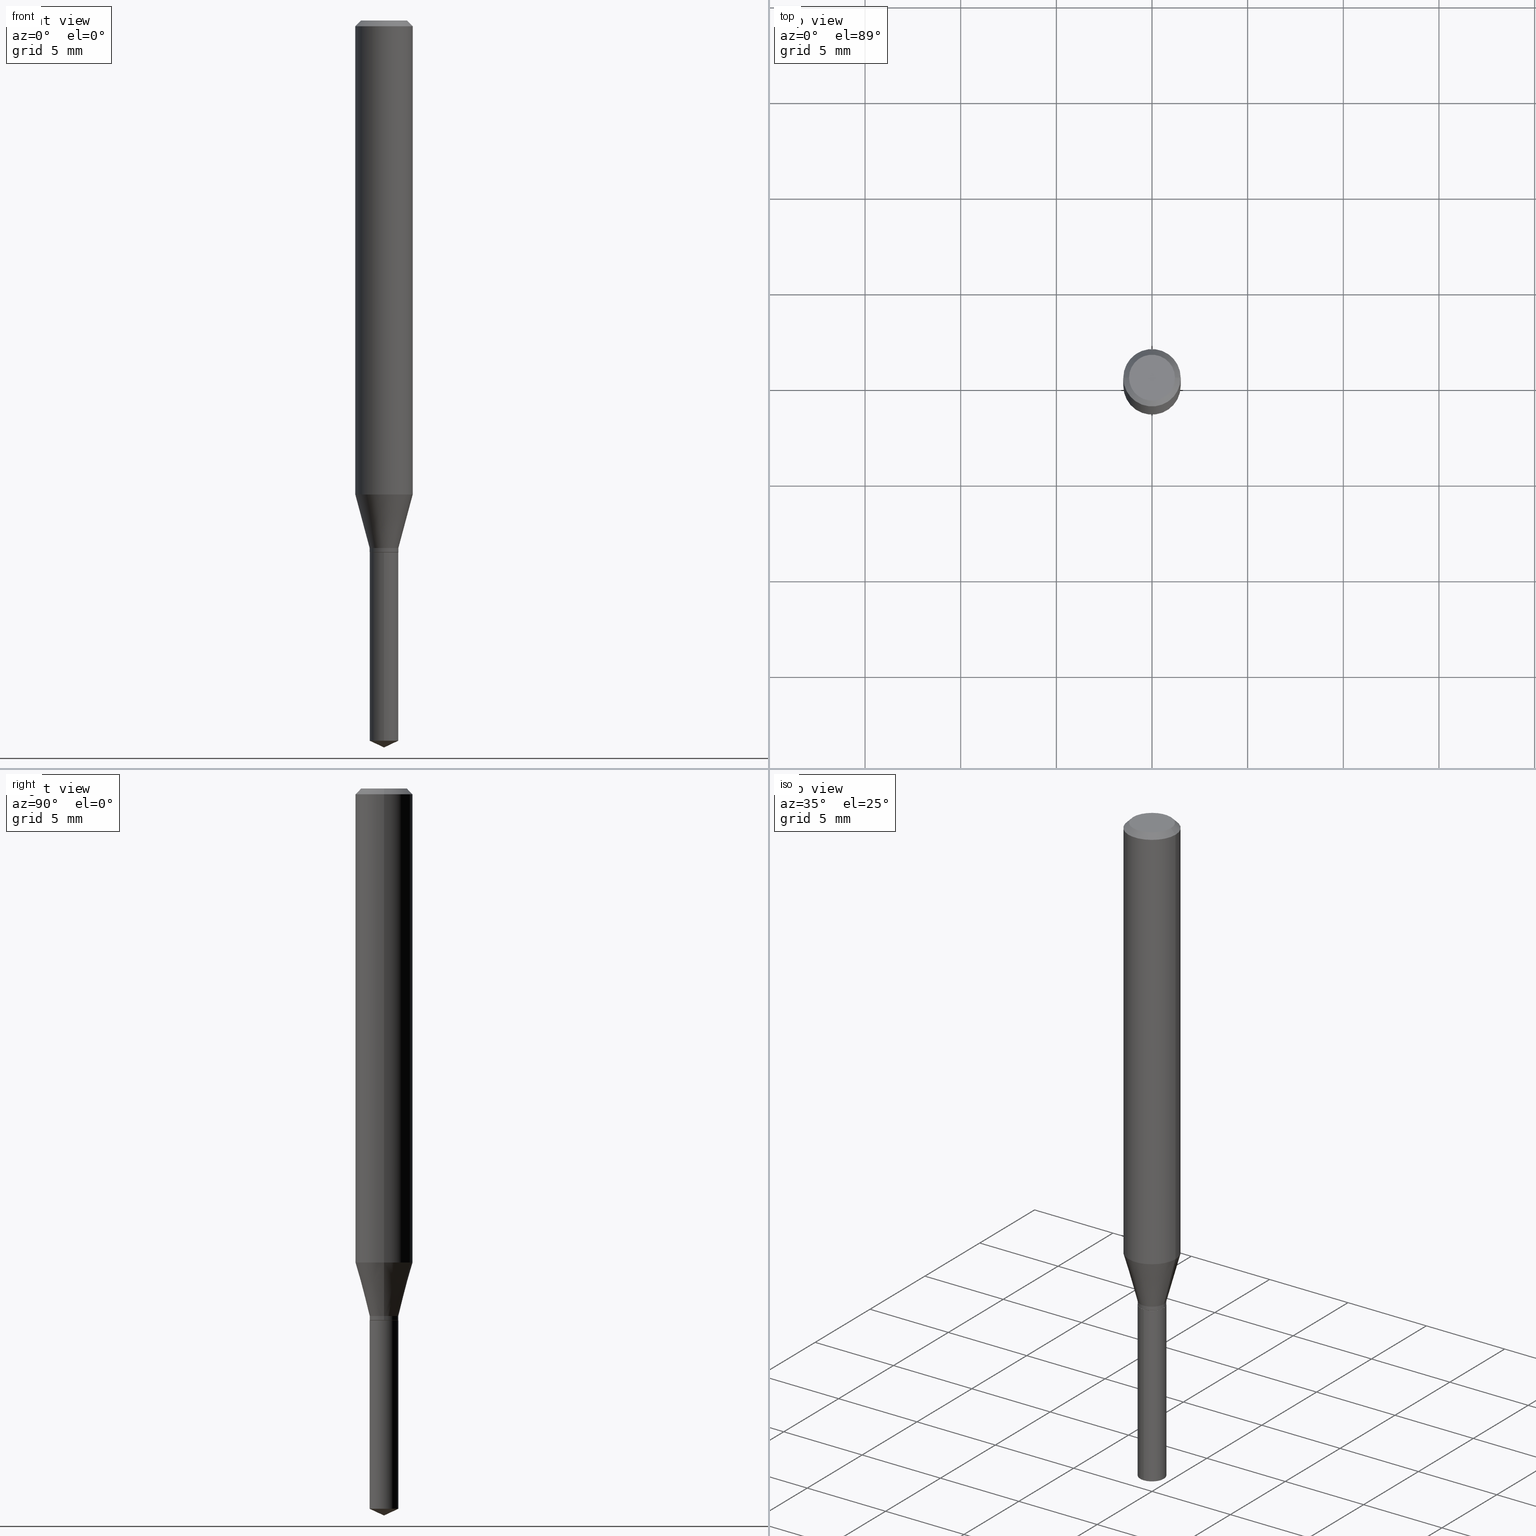
[diagram: canonical four-view strip — front | top / right | iso, engineering-drawing reading convention]
A machine part, canonical four-view strip (front | top / right | iso — engineering-drawing reading convention). The complete STEP part file that produces these views, byte-faithful:
ISO-10303-21;
HEADER;
FILE_DESCRIPTION (( 'STEP AP203' ),
    '1' );
FILE_NAME ('08166.STEP',
    '2024-04-24T13:42:08',
    ( '' ),
    ( '' ),
    'SwSTEP 2.0',
    'SolidWorks 2023',
    '' );
FILE_SCHEMA (( 'CONFIG_CONTROL_DESIGN' ));
ENDSEC;

DATA;
#1 = CARTESIAN_POINT ( 'NONE',  ( 2.676565608369631794E-29, -3.821426325363822773E-15, -1.094499999999999806 ) ) ;
#2 = LINE ( 'NONE', #263, #433 ) ;
#3 = ORIENTED_EDGE ( 'NONE', *, *, #186, .F. ) ;
#4 = DIMENSIONAL_EXPONENTS ( 1.000000000000000000, 0.000000000000000000, 0.000000000000000000, 0.000000000000000000, 0.000000000000000000, 0.000000000000000000, 0.000000000000000000 ) ;
#5 = AXIS2_PLACEMENT_3D ( 'NONE', #114, #448, #272 ) ;
#6 =( LENGTH_UNIT ( ) NAMED_UNIT ( * ) SI_UNIT ( $, .METRE. ) );
#7 = CC_DESIGN_PERSON_AND_ORGANIZATION_ASSIGNMENT ( #387, #201, ( #406 ) ) ;
#8 = PLANE ( 'NONE',  #388 ) ;
#9 = CARTESIAN_POINT ( 'NONE',  ( 0.02954999999999998600, -3.996698688573748043E-15, -1.085600000000000120 ) ) ;
#10 = CARTESIAN_POINT ( 'NONE',  ( 0.04724000000000000421, -3.852183633974369345E-16, -3.380025165621689721E-19 ) ) ;
#11 = DIRECTION ( 'NONE',  ( -2.445468806185136597E-29, 3.491481338843145583E-15, 1.000000000000000000 ) ) ;
#12 = DIRECTION ( 'NONE',  ( 0.2588190451025211281, 1.565188264969622954E-15, 0.9659258262890679791 ) ) ;
#13 = CC_DESIGN_DATE_AND_TIME_ASSIGNMENT ( #474, #250, ( #338 ) ) ;
#14 = CARTESIAN_POINT ( 'NONE',  ( 2.676565608369631794E-29, -3.821426325363822773E-15, -1.094499999999999806 ) ) ;
#15 = VECTOR ( 'NONE', #116, 39.37007874015748143 ) ;
#16 = COORDINATED_UNIVERSAL_TIME_OFFSET ( 5, 0, .BEHIND. ) ;
#17 = ORIENTED_EDGE ( 'NONE', *, *, #449, .T. ) ;
#18 = CARTESIAN_POINT ( 'NONE',  ( -9.261705871415894043E-28, 1.322399773465276608E-13, 37.87397874015748300 ) ) ;
#19 = PERSON_AND_ORGANIZATION ( #278, #25 ) ;
#20 = CARTESIAN_POINT ( 'NONE',  ( 2.676565608369631794E-29, -3.821426325363822773E-15, -1.094499999999999806 ) ) ;
#21 = ORIENTED_EDGE ( 'NONE', *, *, #401, .F. ) ;
#22 = LINE ( 'NONE', #113, #148 ) ;
#23 = AXIS2_PLACEMENT_3D ( 'NONE', #85, #241, #390 ) ;
#24 = ADVANCED_FACE ( 'NONE', ( #66 ), #42, .T. ) ;
#25 = ORGANIZATION ( 'UNSPECIFIED', 'UNSPECIFIED', '' ) ;
#26 = ORIENTED_EDGE ( 'NONE', *, *, #481, .T. ) ;
#27 = AXIS2_PLACEMENT_3D ( 'NONE', #419, #155, #381 ) ;
#28 = CC_DESIGN_PERSON_AND_ORGANIZATION_ASSIGNMENT ( #239, #321, ( #406 ) ) ;
#29 = CIRCLE ( 'NONE', #352, 0.02954999999999999988 ) ;
#30 = EDGE_LOOP ( 'NONE', ( #89, #408, #64 ) ) ;
#31 = ORIENTED_EDGE ( 'NONE', *, *, #249, .F. ) ;
#32 = EDGE_CURVE ( 'NONE', #480, #331, #423, .T. ) ;
#33 = ORIENTED_EDGE ( 'NONE', *, *, #394, .T. ) ;
#34 = CARTESIAN_POINT ( 'NONE',  ( 2.675342873966538993E-29, -3.819680584694400481E-15, -1.093999999999999861 ) ) ;
#35 = CARTESIAN_POINT ( 'NONE',  ( 3.624943183911285064E-29, -5.175531440543460128E-15, -1.482320608701520159 ) ) ;
#36 = DIRECTION ( 'NONE',  ( 0.7071067811865173747, -2.468850131081940727E-15, 0.7071067811865776598 ) ) ;
#37 = EDGE_CURVE ( 'NONE', #371, #232, #29, .T. ) ;
#38 = FACE_OUTER_BOUND ( 'NONE', #105, .T. ) ;
#39 = DIRECTION ( 'NONE',  ( -2.445468806185136597E-29, 3.491481338843145583E-15, 1.000000000000000000 ) ) ;
#40 = ORIENTED_EDGE ( 'NONE', *, *, #449, .F. ) ;
#41 = CARTESIAN_POINT ( 'NONE',  ( -0.05904999999999999832, -1.304019592747529476E-15, -0.01181000000000007565 ) ) ;
#42 = CYLINDRICAL_SURFACE ( 'NONE', #409, 0.02954999999999999988 ) ;
#43 = CIRCLE ( 'NONE', #23, 0.04724000000000000421 ) ;
#44 = CC_DESIGN_PERSON_AND_ORGANIZATION_ASSIGNMENT ( #317, #84, ( #223 ) ) ;
#45 = FACE_OUTER_BOUND ( 'NONE', #212, .T. ) ;
#46 = ORIENTED_EDGE ( 'NONE', *, *, #224, .F. ) ;
#47 = AXIS2_PLACEMENT_3D ( 'NONE', #193, #489, #158 ) ;
#48 = CARTESIAN_POINT ( 'NONE',  ( 0.000000000000000000, 0.000000000000000000, 0.000000000000000000 ) ) ;
#49 = CALENDAR_DATE ( 2024, 24, 4 ) ;
#50 = FACE_OUTER_BOUND ( 'NONE', #420, .T. ) ;
#51 = ADVANCED_FACE ( 'NONE', ( #58 ), #8, .F. ) ;
#52 = DIRECTION ( 'NONE',  ( -2.445402730703145379E-29, 3.491575962694140016E-15, 1.000000000000000000 ) ) ;
#53 = DIRECTION ( 'NONE',  ( 1.000000000000000000, 0.000000000000000000, 0.000000000000000000 ) ) ;
#54 = DIRECTION ( 'NONE',  ( 1.000000000000000000, -6.982962677686266711E-15, 4.876176775795935793E-29 ) ) ;
#55 = DIRECTION ( 'NONE',  ( 1.000000000000000000, -6.982962677686265133E-15, 0.000000000000000000 ) ) ;
#56 = VECTOR ( 'NONE', #161, 39.37007874015748143 ) ;
#57 = CARTESIAN_POINT ( 'NONE',  ( 0.000000000000000000, 0.000000000000000000, 0.000000000000000000 ) ) ;
#58 = FACE_OUTER_BOUND ( 'NONE', #110, .T. ) ;
#59 = ORIENTED_EDGE ( 'NONE', *, *, #457, .F. ) ;
#60 = CARTESIAN_POINT ( 'NONE',  ( -0.02904999999999999943, -3.615013660625513525E-15, -1.094499999999999806 ) ) ;
#61 = CIRCLE ( 'NONE', #107, 0.05904999999999999832 ) ;
#62 = EDGE_CURVE ( 'NONE', #257, #397, #123, .T. ) ;
#63 = CLOSED_SHELL ( 'NONE', ( #24, #369, #238, #344, #258 ) ) ;
#64 = ORIENTED_EDGE ( 'NONE', *, *, #394, .F. ) ;
#65 = ORIENTED_EDGE ( 'NONE', *, *, #242, .T. ) ;
#66 = FACE_OUTER_BOUND ( 'NONE', #121, .T. ) ;
#67 = AXIS2_PLACEMENT_3D ( 'NONE', #413, #231, #379 ) ;
#68 = CONICAL_SURFACE ( 'NONE', #235, 0.02904999999999999943, 0.7853981633974056464 ) ;
#69 = ORIENTED_EDGE ( 'NONE', *, *, #427, .T. ) ;
#70 = EDGE_CURVE ( 'NONE', #251, #374, #300, .T. ) ;
#71 = DIRECTION ( 'NONE',  ( -2.445402730703145379E-29, 3.491575962694140016E-15, 1.000000000000000000 ) ) ;
#72 = DIRECTION ( 'NONE',  ( -6.982962677686265922E-15, -1.000000000000000000, 0.000000000000000000 ) ) ;
#73 = CARTESIAN_POINT ( 'NONE',  ( -0.02954999999999998600, -3.595050984654150493E-15, -1.085600000000000120 ) ) ;
#74 = DIRECTION ( 'NONE',  ( -2.445468806185136597E-29, 3.491481338843145583E-15, 1.000000000000000000 ) ) ;
#75 = AXIS2_PLACEMENT_3D ( 'NONE', #90, #132, #55 ) ;
#76 = ADVANCED_FACE ( 'NONE', ( #50 ), #179, .T. ) ;
#77 = DIRECTION ( 'NONE',  ( -2.445468806185136597E-29, 3.491481338843145583E-15, 1.000000000000000000 ) ) ;
#78 = ORIENTED_EDGE ( 'NONE', *, *, #405, .F. ) ;
#79 = CARTESIAN_POINT ( 'NONE',  ( 2.888098660104664642E-31, -4.123439461173780879E-17, -0.01181000000000007565 ) ) ;
#80 = CARTESIAN_POINT ( 'NONE',  ( -0.05904999999999999832, 3.711095515056362547E-16, -0.01181000000000007565 ) ) ;
#81 = ORIENTED_EDGE ( 'NONE', *, *, #221, .T. ) ;
#82 = DATE_AND_TIME ( #97, #445 ) ;
#83 = AXIS2_PLACEMENT_3D ( 'NONE', #467, #175, #281 ) ;
#84 = PERSON_AND_ORGANIZATION_ROLE ( 'design_owner' ) ;
#85 = CARTESIAN_POINT ( 'NONE',  ( 8.265746106709734507E-48, -1.180129479067563789E-33, -3.380025165646692144E-19 ) ) ;
#86 = LINE ( 'NONE', #60, #290 ) ;
#87 = PERSON_AND_ORGANIZATION ( #278, #25 ) ;
#88 = FACE_OUTER_BOUND ( 'NONE', #475, .T. ) ;
#89 = ORIENTED_EDGE ( 'NONE', *, *, #427, .F. ) ;
#90 = CARTESIAN_POINT ( 'NONE',  ( 2.654800935994584637E-29, -3.790352141448118432E-15, -1.085600000000000120 ) ) ;
#91 = CC_DESIGN_APPROVAL ( #320, ( #476 ) ) ;
#92 = LENGTH_MEASURE_WITH_UNIT ( LENGTH_MEASURE( 0.02539999999999999897 ), #6 );
#93 = DIRECTION ( 'NONE',  ( -2.438088387897960049E-29, 3.491481338843145188E-15, 1.000000000000000000 ) ) ;
#94 = EDGE_CURVE ( 'NONE', #237, #382, #353, .T. ) ;
#95 = CARTESIAN_POINT ( 'NONE',  ( 2.099653784171458177E-16, 0.02954999999999482693, -1.482320608701520159 ) ) ;
#96 = CIRCLE ( 'NONE', #163, 0.02954999999999999988 ) ;
#97 = CALENDAR_DATE ( 2024, 24, 4 ) ;
#98 = DIRECTION ( 'NONE',  ( -6.982962677686265922E-15, -1.000000000000000000, 4.622416232934455843E-15 ) ) ;
#99 = ORIENTED_EDGE ( 'NONE', *, *, #315, .T. ) ;
#100 = PERSON_AND_ORGANIZATION_ROLE ( 'classification_officer' ) ;
#101 = ORIENTED_EDGE ( 'NONE', *, *, #457, .T. ) ;
#102 = CC_DESIGN_APPROVAL ( #440, ( #338 ) ) ;
#103 = AXIS2_PLACEMENT_3D ( 'NONE', #14, #398, #169 ) ;
#104 = DATE_AND_TIME ( #108, #279 ) ;
#105 = EDGE_LOOP ( 'NONE', ( #380, #81 ) ) ;
#106 = VERTEX_POINT ( 'NONE', #247 ) ;
#107 = AXIS2_PLACEMENT_3D ( 'NONE', #286, #424, #438 ) ;
#108 = CALENDAR_DATE ( 2024, 24, 4 ) ;
#109 = UNCERTAINTY_MEASURE_WITH_UNIT (LENGTH_MEASURE( 1.000000000000000082E-05 ), #126, 'distance_accuracy_value', 'NONE');
#110 = EDGE_LOOP ( 'NONE', ( #59, #444 ) ) ;
#111 = CIRCLE ( 'NONE', #318, 0.02904999999999999943 ) ;
#112 = CARTESIAN_POINT ( 'NONE',  ( 0.05905000000000011628, -3.818299707933375918E-15, -0.9755045011767178309 ) ) ;
#113 = CARTESIAN_POINT ( 'NONE',  ( 0.05905000000000006077, -4.123439461173744764E-16, 2.879382386107503023E-30 ) ) ;
#114 = CARTESIAN_POINT ( 'NONE',  ( 2.676565608369631794E-29, -3.821426325363822773E-15, -1.094499999999999806 ) ) ;
#115 = PLANE ( 'NONE',  #67 ) ;
#116 = DIRECTION ( 'NONE',  ( -6.328713451373407244E-15, -0.9063077870366539335, 0.4226182617406910036 ) ) ;
#117 = DIRECTION ( 'NONE',  ( 1.000000000000000000, -6.982962677686261189E-15, 0.000000000000000000 ) ) ;
#118 = ORIENTED_EDGE ( 'NONE', *, *, #471, .F. ) ;
#119 = AXIS2_PLACEMENT_3D ( 'NONE', #205, #357, #473 ) ;
#120 = CARTESIAN_POINT ( 'NONE',  ( -2.063465471255929284E-16, -0.02955000000000517282, -1.482320608701520159 ) ) ;
#121 = EDGE_LOOP ( 'NONE', ( #468, #215, #477, #3 ) ) ;
#122 = APPLICATION_PROTOCOL_DEFINITION ( 'international standard', 'config_control_design', 1994, #253 ) ;
#123 = LINE ( 'NONE', #277, #262 ) ;
#124 = CIRCLE ( 'NONE', #153, 0.02954999999999999294 ) ;
#125 = ADVANCED_FACE ( 'NONE', ( #165 ), #68, .T. ) ;
#126 =( CONVERSION_BASED_UNIT ( 'INCH', #92 ) LENGTH_UNIT ( ) NAMED_UNIT ( #4 ) );
#127 = CARTESIAN_POINT ( 'NONE',  ( 0.000000000000000000, 0.000000000000000000, 0.000000000000000000 ) ) ;
#128 = CIRCLE ( 'NONE', #103, 0.02954999999999999988 ) ;
#129 = CARTESIAN_POINT ( 'NONE',  ( 2.675342873966538993E-29, -3.819680584694400481E-15, -1.093999999999999861 ) ) ;
#130 = CC_DESIGN_PERSON_AND_ORGANIZATION_ASSIGNMENT ( #329, #100, ( #338 ) ) ;
#131 = DIRECTION ( 'NONE',  ( 1.000000000000000000, -6.982962677686265133E-15, 0.000000000000000000 ) ) ;
#132 = DIRECTION ( 'NONE',  ( -2.445468806185136597E-29, 3.491481338843145583E-15, 1.000000000000000000 ) ) ;
#133 = ADVANCED_FACE ( 'NONE', ( #319 ), #459, .T. ) ;
#134 = EDGE_LOOP ( 'NONE', ( #273, #99, #456, #464 ) ) ;
#135 = CARTESIAN_POINT ( 'NONE',  ( 0.02954999999999998600, -2.063465471256291174E-16, 1.440910237247698545E-30 ) ) ;
#136 = LOCAL_TIME ( 9, 42, 8.000000000000000000, #180 ) ;
#137 = PERSON_AND_ORGANIZATION ( #278, #25 ) ;
#138 = EDGE_CURVE ( 'NONE', #220, #162, #43, .T. ) ;
#139 = ORIENTED_EDGE ( 'NONE', *, *, #164, .F. ) ;
#140 = CIRCLE ( 'NONE', #47, 0.05905000000000011628 ) ;
#141 = CLOSED_SHELL ( 'NONE', ( #354, #274, #151, #146, #156, #133, #76, #478, #204, #439, #51, #125 ) ) ;
#142 = SHAPE_DEFINITION_REPRESENTATION ( #411, #341 ) ;
#143 = ORIENTED_EDGE ( 'NONE', *, *, #32, .F. ) ;
#144 = CALENDAR_DATE ( 2024, 24, 4 ) ;
#145 = EDGE_LOOP ( 'NONE', ( #297, #490, #65, #78 ) ) ;
#146 = ADVANCED_FACE ( 'NONE', ( #356 ), #484, .T. ) ;
#147 = ORIENTED_EDGE ( 'NONE', *, *, #264, .F. ) ;
#148 = VECTOR ( 'NONE', #227, 39.37007874015748143 ) ;
#149 = COORDINATED_UNIVERSAL_TIME_OFFSET ( 5, 0, .BEHIND. ) ;
#150 = ORIENTED_EDGE ( 'NONE', *, *, #186, .T. ) ;
#151 = ADVANCED_FACE ( 'NONE', ( #88 ), #244, .T. ) ;
#152 = ORIENTED_EDGE ( 'NONE', *, *, #361, .T. ) ;
#153 = AXIS2_PLACEMENT_3D ( 'NONE', #129, #282, #428 ) ;
#154 = CARTESIAN_POINT ( 'NONE',  ( 2.099653784171458424E-16, 0.02954999999999618002, -1.094500000000000028 ) ) ;
#155 = DIRECTION ( 'NONE',  ( -2.445402730703145379E-29, 3.491575962694140016E-15, 1.000000000000000000 ) ) ;
#156 = ADVANCED_FACE ( 'NONE', ( #342 ), #252, .T. ) ;
#157 = FACE_OUTER_BOUND ( 'NONE', #384, .T. ) ;
#158 = DIRECTION ( 'NONE',  ( 1.000000000000000000, -6.982962677686266711E-15, 0.000000000000000000 ) ) ;
#159 = ORIENTED_EDGE ( 'NONE', *, *, #181, .F. ) ;
#160 = CC_DESIGN_SECURITY_CLASSIFICATION ( #338, ( #406 ) ) ;
#161 = DIRECTION ( 'NONE',  ( -2.445402730703145379E-29, 3.491575962694140016E-15, 1.000000000000000000 ) ) ;
#162 = VERTEX_POINT ( 'NONE', #10 ) ;
#163 = AXIS2_PLACEMENT_3D ( 'NONE', #35, #71, #72 ) ;
#164 = EDGE_CURVE ( 'NONE', #331, #480, #124, .T. ) ;
#165 = FACE_OUTER_BOUND ( 'NONE', #269, .T. ) ;
#166 = APPROVAL_DATE_TIME ( #240, #320 ) ;
#167 = DIRECTION ( 'NONE',  ( -2.445468806185136597E-29, 3.491481338843145583E-15, 1.000000000000000000 ) ) ;
#168 = CONICAL_SURFACE ( 'NONE', #441, 84.42940631927679362, 1.134464013796327109 ) ;
#169 = DIRECTION ( 'NONE',  ( -6.982962677686265922E-15, -1.000000000000000000, 4.622416232934455843E-15 ) ) ;
#170 = APPROVAL_DATE_TIME ( #82, #372 ) ;
#171 = ORIENTED_EDGE ( 'NONE', *, *, #401, .T. ) ;
#172 = DIRECTION ( 'NONE',  ( -2.445402730703145379E-29, 3.491575962694140016E-15, 1.000000000000000000 ) ) ;
#173 = CC_DESIGN_PERSON_AND_ORGANIZATION_ASSIGNMENT ( #137, #283, ( #476 ) ) ;
#174 = CYLINDRICAL_SURFACE ( 'NONE', #385, 0.05905000000000006077 ) ;
#175 = DIRECTION ( 'NONE',  ( -2.445468806185136597E-29, 3.491481338843145583E-15, 1.000000000000000000 ) ) ;
#176 = ORIENTED_EDGE ( 'NONE', *, *, #184, .T. ) ;
#177 = LINE ( 'NONE', #213, #435 ) ;
#178 = CONICAL_SURFACE ( 'NONE', #5, 0.02904999999999999943, 0.7853981633974056464 ) ;
#179 = CONICAL_SURFACE ( 'NONE', #83, 0.02954999999999998600, 0.2617993877991498519 ) ;
#180 = COORDINATED_UNIVERSAL_TIME_OFFSET ( 5, 0, .BEHIND. ) ;
#181 = EDGE_CURVE ( 'NONE', #248, #328, #61, .T. ) ;
#182 = ORIENTED_EDGE ( 'NONE', *, *, #270, .T. ) ;
#183 = ORIENTED_EDGE ( 'NONE', *, *, #405, .T. ) ;
#184 = EDGE_CURVE ( 'NONE', #365, #480, #86, .T. ) ;
#185 = DIRECTION ( 'NONE',  ( -2.445468806185136597E-29, 3.491481338843145583E-15, 1.000000000000000000 ) ) ;
#186 = EDGE_CURVE ( 'NONE', #371, #251, #177, .T. ) ;
#187 = DIRECTION ( 'NONE',  ( -2.445468806185136877E-29, 3.491481338843145188E-15, 1.000000000000000000 ) ) ;
#188 = LINE ( 'NONE', #195, #56 ) ;
#189 = AXIS2_PLACEMENT_3D ( 'NONE', #309, #487, #455 ) ;
#190 = DIRECTION ( 'NONE',  ( 1.000000000000000000, -6.982962677686265133E-15, 0.000000000000000000 ) ) ;
#191 = DIRECTION ( 'NONE',  ( -1.000000000000000000, 6.982962677686266711E-15, 0.000000000000000000 ) ) ;
#192 = PLANE ( 'NONE',  #230 ) ;
#193 = CARTESIAN_POINT ( 'NONE',  ( 2.385565827920855262E-29, -3.405955761816001787E-15, -0.9755045011767178309 ) ) ;
#194 = CARTESIAN_POINT ( 'NONE',  ( 3.624943183911285064E-29, -5.175531440543460128E-15, -1.482320608701520159 ) ) ;
#195 = CARTESIAN_POINT ( 'NONE',  ( 2.099653784171363267E-16, 0.02954999999999618002, -1.094500000000000028 ) ) ;
#196 = CARTESIAN_POINT ( 'NONE',  ( 2.676565608369631794E-29, -3.821426325363822773E-15, -1.094499999999999806 ) ) ;
#197 = APPROVAL_PERSON_ORGANIZATION ( #400, #440, #295 ) ;
#198 = DIRECTION ( 'NONE',  ( 1.000000000000000000, -6.982962677686261189E-15, 0.000000000000000000 ) ) ;
#199 = AXIS2_PLACEMENT_3D ( 'NONE', #304, #452, #117 ) ;
#200 = AXIS2_PLACEMENT_3D ( 'NONE', #34, #185, #334 ) ;
#201 = PERSON_AND_ORGANIZATION_ROLE ( 'design_supplier' ) ;
#202 = DIRECTION ( 'NONE',  ( 1.000000000000000000, -6.982962677686266711E-15, 0.000000000000000000 ) ) ;
#203 = CARTESIAN_POINT ( 'NONE',  ( 2.676565608369631794E-29, -3.821426325363822773E-15, -1.094499999999999806 ) ) ;
#204 = ADVANCED_FACE ( 'NONE', ( #436 ), #209, .T. ) ;
#205 = CARTESIAN_POINT ( 'NONE',  ( 2.888098660104664642E-31, -4.123439461173780879E-17, -0.01181000000000007565 ) ) ;
#206 = APPROVAL_ROLE ( '' ) ;
#207 = CARTESIAN_POINT ( 'NONE',  ( 0.000000000000000000, 0.000000000000000000, 0.000000000000000000 ) ) ;
#208 = MANIFOLD_SOLID_BREP ( 'Body-Move/Copy2[2]', #141 ) ;
#209 = CONICAL_SURFACE ( 'NONE', #119, 0.05904999999999999832, 0.7853981633974450594 ) ;
#210 = FACE_OUTER_BOUND ( 'NONE', #30, .T. ) ;
#211 = DIRECTION ( 'NONE',  ( -2.445402730703145379E-29, 3.491575962694140016E-15, 1.000000000000000000 ) ) ;
#212 = EDGE_LOOP ( 'NONE', ( #437, #17, #363, #293 ) ) ;
#213 = CARTESIAN_POINT ( 'NONE',  ( -2.063465471256024194E-16, -0.02955000000000381974, -1.094499999999999806 ) ) ;
#214 = MANIFOLD_SOLID_BREP ( 'Body-Move/Copy2[1]', #63 ) ;
#215 = ORIENTED_EDGE ( 'NONE', *, *, #340, .T. ) ;
#216 = CARTESIAN_POINT ( 'NONE',  ( -0.04724000000000000421, 3.504923541997677355E-16, -3.380025165670481712E-19 ) ) ;
#217 = AXIS2_PLACEMENT_3D ( 'NONE', #57, #434, #53 ) ;
#218 = APPROVAL_STATUS ( 'not_yet_approved' ) ;
#219 = EDGE_LOOP ( 'NONE', ( #296, #152, #46, #417 ) ) ;
#220 = VERTEX_POINT ( 'NONE', #216 ) ;
#221 = EDGE_CURVE ( 'NONE', #374, #251, #128, .T. ) ;
#222 = DIRECTION ( 'NONE',  ( -6.982962677686265922E-15, -1.000000000000000000, 4.622416232934455843E-15 ) ) ;
#223 = PRODUCT ( '08166', '08166', '', ( #458 ) ) ;
#224 = EDGE_CURVE ( 'NONE', #237, #257, #333, .T. ) ;
#225 = AXIS2_PLACEMENT_3D ( 'NONE', #303, #39, #190 ) ;
#226 = DIRECTION ( 'NONE',  ( 1.000000000000000000, -6.982962677686266711E-15, 0.000000000000000000 ) ) ;
#227 = DIRECTION ( 'NONE',  ( -2.445468806185136877E-29, 3.491481338843145188E-15, 1.000000000000000000 ) ) ;
#228 = LINE ( 'NONE', #377, #373 ) ;
#229 = LOCAL_TIME ( 9, 42, 8.000000000000000000, #466 ) ;
#230 = AXIS2_PLACEMENT_3D ( 'NONE', #1, #345, #335 ) ;
#231 = DIRECTION ( 'NONE',  ( 2.438088387897960049E-29, -3.491481338843145188E-15, -1.000000000000000000 ) ) ;
#232 = VERTEX_POINT ( 'NONE', #95 ) ;
#233 = FACE_OUTER_BOUND ( 'NONE', #311, .T. ) ;
#234 = ORIENTED_EDGE ( 'NONE', *, *, #224, .T. ) ;
#235 = AXIS2_PLACEMENT_3D ( 'NONE', #203, #314, #463 ) ;
#236 = DIRECTION ( 'NONE',  ( -0.7071067811865452413, 2.468850131082233000E-15, -0.7071067811865497932 ) ) ;
#237 = VERTEX_POINT ( 'NONE', #366 ) ;
#238 = ADVANCED_FACE ( 'NONE', ( #210 ), #168, .T. ) ;
#239 = PERSON_AND_ORGANIZATION ( #278, #25 ) ;
#240 = DATE_AND_TIME ( #49, #229 ) ;
#241 = DIRECTION ( 'NONE',  ( -2.445468806185136597E-29, 3.491481338843145583E-15, 1.000000000000000000 ) ) ;
#242 = EDGE_CURVE ( 'NONE', #331, #237, #465, .T. ) ;
#243 = DIRECTION ( 'NONE',  ( -0.7071067811865173747, 7.493145998870245297E-15, 0.7071067811865776598 ) ) ;
#244 = CYLINDRICAL_SURFACE ( 'NONE', #324, 0.05905000000000006077 ) ;
#245 = EDGE_LOOP ( 'NONE', ( #101, #176, #139, #21 ) ) ;
#246 = CARTESIAN_POINT ( 'NONE',  ( 0.000000000000000000, 0.000000000000000000, 0.000000000000000000 ) ) ;
#247 = CARTESIAN_POINT ( 'NONE',  ( 3.658567025404975087E-29, -5.223746797786701947E-15, -1.496099999999999985 ) ) ;
#248 = VERTEX_POINT ( 'NONE', #364 ) ;
#249 = EDGE_CURVE ( 'NONE', #382, #248, #22, .T. ) ;
#250 = DATE_TIME_ROLE ( 'classification_date' ) ;
#251 = VERTEX_POINT ( 'NONE', #348 ) ;
#252 = CYLINDRICAL_SURFACE ( 'NONE', #337, 0.02954999999999998600 ) ;
#253 = APPLICATION_CONTEXT ( 'configuration controlled 3d designs of mechanical parts and assemblies' ) ;
#254 = LOCAL_TIME ( 9, 42, 8.000000000000000000, #16 ) ;
#255 = ORIENTED_EDGE ( 'NONE', *, *, #471, .T. ) ;
#256 = AXIS2_PLACEMENT_3D ( 'NONE', #485, #74, #226 ) ;
#257 = VERTEX_POINT ( 'NONE', #73 ) ;
#258 = ADVANCED_FACE ( 'NONE', ( #38 ), #192, .F. ) ;
#259 = ORIENTED_EDGE ( 'NONE', *, *, #94, .T. ) ;
#260 = ORIENTED_EDGE ( 'NONE', *, *, #340, .F. ) ;
#261 = CIRCLE ( 'NONE', #327, 0.05905000000000011628 ) ;
#262 = VECTOR ( 'NONE', #322, 39.37007874015748854 ) ;
#263 = CARTESIAN_POINT ( 'NONE',  ( -0.02954999999999998600, 2.099653784171095054E-16, -1.453545319170324025E-30 ) ) ;
#264 = EDGE_CURVE ( 'NONE', #106, #371, #271, .T. ) ;
#265 = CARTESIAN_POINT ( 'NONE',  ( -0.02904999999999999943, -3.612364433451402324E-15, -1.094499999999999806 ) ) ;
#266 = LINE ( 'NONE', #376, #294 ) ;
#267 = CIRCLE ( 'NONE', #256, 0.05904999999999999832 ) ;
#268 = DIRECTION ( 'NONE',  ( -2.445468806185136597E-29, 3.491481338843145583E-15, 1.000000000000000000 ) ) ;
#269 = EDGE_LOOP ( 'NONE', ( #404, #26, #171, #143 ) ) ;
#270 = EDGE_CURVE ( 'NONE', #397, #328, #415, .T. ) ;
#271 = LINE ( 'NONE', #451, #15 ) ;
#272 = DIRECTION ( 'NONE',  ( 1.000000000000000000, -6.982962677686261189E-15, 0.000000000000000000 ) ) ;
#273 = ORIENTED_EDGE ( 'NONE', *, *, #386, .F. ) ;
#274 = ADVANCED_FACE ( 'NONE', ( #454 ), #414, .T. ) ;
#275 = AXIS2_PLACEMENT_3D ( 'NONE', #359, #167, #131 ) ;
#276 = APPROVAL_STATUS ( 'not_yet_approved' ) ;
#277 = CARTESIAN_POINT ( 'NONE',  ( -0.02954999999999998600, -3.580386763031009075E-15, -1.085600000000000120 ) ) ;
#278 = PERSON ( 'UNSPECIFIED', 'UNSPECIFIED', 'UNSPECIFIED', ('UNSPECIFIED'), ('UNSPECIFIED'), ('UNSPECIFIED') ) ;
#279 = LOCAL_TIME ( 9, 42, 8.000000000000000000, #149 ) ;
#280 = APPLICATION_CONTEXT ( 'configuration controlled 3d designs of mechanical parts and assemblies' ) ;
#281 = DIRECTION ( 'NONE',  ( 1.000000000000000000, -6.982962677686265133E-15, 0.000000000000000000 ) ) ;
#282 = DIRECTION ( 'NONE',  ( -2.445468806185136597E-29, 3.491481338843145583E-15, 1.000000000000000000 ) ) ;
#283 = PERSON_AND_ORGANIZATION_ROLE ( 'creator' ) ;
#284 = DIRECTION ( 'NONE',  ( 1.000000000000000000, -6.982962677686267499E-15, 4.876176775795936353E-29 ) ) ;
#285 = ORIENTED_EDGE ( 'NONE', *, *, #94, .F. ) ;
#286 = CARTESIAN_POINT ( 'NONE',  ( 2.888098660104664642E-31, -4.123439461173780879E-17, -0.01181000000000007565 ) ) ;
#287 = COORDINATED_UNIVERSAL_TIME_OFFSET ( 5, 0, .BEHIND. ) ;
#288 = VECTOR ( 'NONE', #236, 39.37007874015748143 ) ;
#289 = EDGE_CURVE ( 'NONE', #328, #248, #267, .T. ) ;
#290 = VECTOR ( 'NONE', #243, 39.37007874015748143 ) ;
#291 = EDGE_LOOP ( 'NONE', ( #305, #332 ) ) ;
#292 = VERTEX_POINT ( 'NONE', #410 ) ;
#293 = ORIENTED_EDGE ( 'NONE', *, *, #289, .F. ) ;
#294 = VECTOR ( 'NONE', #336, 39.37007874015748143 ) ;
#295 = APPROVAL_ROLE ( '' ) ;
#296 = ORIENTED_EDGE ( 'NONE', *, *, #164, .T. ) ;
#297 = ORIENTED_EDGE ( 'NONE', *, *, #361, .F. ) ;
#298 = CARTESIAN_POINT ( 'NONE',  ( 8.265746106709734507E-48, -1.180129479067563789E-33, -3.380025165646692144E-19 ) ) ;
#299 = AXIS2_PLACEMENT_3D ( 'NONE', #298, #268, #446 ) ;
#300 = CIRCLE ( 'NONE', #470, 0.02954999999999999988 ) ;
#301 = CARTESIAN_POINT ( 'NONE',  ( -0.05905000000000011628, -2.986380276349661505E-15, -0.9755045011767178309 ) ) ;
#302 = DIRECTION ( 'NONE',  ( 2.445468806185136597E-29, -3.491481338843145583E-15, -1.000000000000000000 ) ) ;
#303 = CARTESIAN_POINT ( 'NONE',  ( 2.654800935994584637E-29, -3.790352141448118432E-15, -1.085600000000000120 ) ) ;
#304 = CARTESIAN_POINT ( 'NONE',  ( 2.676565608369631794E-29, -3.821426325363822773E-15, -1.094499999999999806 ) ) ;
#305 = ORIENTED_EDGE ( 'NONE', *, *, #138, .T. ) ;
#306 = APPROVAL_PERSON_ORGANIZATION ( #87, #372, #206 ) ;
#307 = CIRCLE ( 'NONE', #299, 0.04724000000000000421 ) ;
#308 = DIRECTION ( 'NONE',  ( -2.445468806185136877E-29, 3.491481338843145188E-15, 1.000000000000000000 ) ) ;
#309 = CARTESIAN_POINT ( 'NONE',  ( 2.676565608369631794E-29, -3.821426325363822773E-15, -1.094499999999999806 ) ) ;
#310 = PRODUCT_RELATED_PRODUCT_CATEGORY ( 'detail', '', ( #223 ) ) ;
#311 = EDGE_LOOP ( 'NONE', ( #147, #69, #443 ) ) ;
#312 =( NAMED_UNIT ( * ) PLANE_ANGLE_UNIT ( ) SI_UNIT ( $, .RADIAN. ) );
#313 = DIRECTION ( 'NONE',  ( 1.000000000000000000, -6.982962677686265922E-15, 4.876176775795935793E-29 ) ) ;
#314 = DIRECTION ( 'NONE',  ( -2.445468806185136597E-29, 3.491481338843145583E-15, 1.000000000000000000 ) ) ;
#315 = EDGE_CURVE ( 'NONE', #162, #248, #266, .T. ) ;
#316 = DIRECTION ( 'NONE',  ( 1.000000000000000000, -6.982962677686267499E-15, 4.876176775795936353E-29 ) ) ;
#317 = PERSON_AND_ORGANIZATION ( #278, #25 ) ;
#318 = AXIS2_PLACEMENT_3D ( 'NONE', #395, #355, #198 ) ;
#319 = FACE_OUTER_BOUND ( 'NONE', #145, .T. ) ;
#320 = APPROVAL ( #276, 'UNSPECIFIED' ) ;
#321 = PERSON_AND_ORGANIZATION_ROLE ( 'creator' ) ;
#322 = DIRECTION ( 'NONE',  ( -0.2588190451025211281, 5.211531920934547886E-15, 0.9659258262890679791 ) ) ;
#323 = DIRECTION ( 'NONE',  ( -6.982962677686268288E-15, -1.000000000000000000, 3.520397390770351318E-15 ) ) ;
#324 = AXIS2_PLACEMENT_3D ( 'NONE', #207, #393, #54 ) ;
#325 = APPROVAL_ROLE ( '' ) ;
#326 = ORIENTED_EDGE ( 'NONE', *, *, #289, .T. ) ;
#327 = AXIS2_PLACEMENT_3D ( 'NONE', #416, #77, #202 ) ;
#328 = VERTEX_POINT ( 'NONE', #41 ) ;
#329 = PERSON_AND_ORGANIZATION ( #278, #25 ) ;
#330 = ORIENTED_EDGE ( 'NONE', *, *, #62, .T. ) ;
#331 = VERTEX_POINT ( 'NONE', #349 ) ;
#332 = ORIENTED_EDGE ( 'NONE', *, *, #386, .T. ) ;
#333 = CIRCLE ( 'NONE', #75, 0.02954999999999998600 ) ;
#334 = DIRECTION ( 'NONE',  ( 1.000000000000000000, -6.982962677686263555E-15, 0.000000000000000000 ) ) ;
#335 = DIRECTION ( 'NONE',  ( 6.982962677686265922E-15, 1.000000000000000000, -3.491575962694140016E-15 ) ) ;
#336 = DIRECTION ( 'NONE',  ( 0.7071067811865452413, -7.319954787623248157E-15, -0.7071067811865497932 ) ) ;
#337 = AXIS2_PLACEMENT_3D ( 'NONE', #246, #391, #316 ) ;
#338 = SECURITY_CLASSIFICATION ( '', '', #370 ) ;
#339 = LINE ( 'NONE', #80, #288 ) ;
#340 = EDGE_CURVE ( 'NONE', #232, #374, #188, .T. ) ;
#341 = ADVANCED_BREP_SHAPE_REPRESENTATION ( '08166', ( #214, #208, #217 ), #431 ) ;
#342 = FACE_OUTER_BOUND ( 'NONE', #219, .T. ) ;
#343 = LINE ( 'NONE', #488, #447 ) ;
#344 = ADVANCED_FACE ( 'NONE', ( #157 ), #383, .T. ) ;
#345 = DIRECTION ( 'NONE',  ( 2.445402730703145099E-29, -3.491575962694140016E-15, -1.000000000000000000 ) ) ;
#346 = DIRECTION ( 'NONE',  ( 6.439704144417063485E-15, 0.9063077870366568201, 0.4226182617406846753 ) ) ;
#347 = DIRECTION ( 'NONE',  ( -2.445402730703145379E-29, 3.491575962694140016E-15, 1.000000000000000000 ) ) ;
#348 = CARTESIAN_POINT ( 'NONE',  ( -2.063465471256024194E-16, -0.02955000000000381974, -1.094499999999999806 ) ) ;
#349 = CARTESIAN_POINT ( 'NONE',  ( 0.02954999999999999294, -4.026027131820030091E-15, -1.093999999999999861 ) ) ;
#350 = DIRECTION ( 'NONE',  ( -2.445402730703145379E-29, 3.491575962694140016E-15, 1.000000000000000000 ) ) ;
#351 = CIRCLE ( 'NONE', #225, 0.02954999999999998600 ) ;
#352 = AXIS2_PLACEMENT_3D ( 'NONE', #194, #347, #430 ) ;
#353 = LINE ( 'NONE', #9, #367 ) ;
#354 = ADVANCED_FACE ( 'NONE', ( #412 ), #178, .T. ) ;
#355 = DIRECTION ( 'NONE',  ( -2.445468806185136597E-29, 3.491481338843145583E-15, 1.000000000000000000 ) ) ;
#356 = FACE_OUTER_BOUND ( 'NONE', #360, .T. ) ;
#357 = DIRECTION ( 'NONE',  ( 2.445468806185136597E-29, -3.491481338843145583E-15, -1.000000000000000000 ) ) ;
#358 =( NAMED_UNIT ( * ) SI_UNIT ( $, .STERADIAN. ) SOLID_ANGLE_UNIT ( ) );
#359 = CARTESIAN_POINT ( 'NONE',  ( 2.654800935994584637E-29, -3.790352141448118432E-15, -1.085600000000000120 ) ) ;
#360 = EDGE_LOOP ( 'NONE', ( #234, #330, #118, #285 ) ) ;
#361 = EDGE_CURVE ( 'NONE', #480, #257, #2, .T. ) ;
#362 = DIRECTION ( 'NONE',  ( 1.000000000000000000, -6.982962677686266711E-15, 4.876176775795935793E-29 ) ) ;
#363 = ORIENTED_EDGE ( 'NONE', *, *, #249, .T. ) ;
#364 = CARTESIAN_POINT ( 'NONE',  ( 0.05904999999999999832, -4.535783407291118600E-16, -0.01181000000000007565 ) ) ;
#365 = VERTEX_POINT ( 'NONE', #265 ) ;
#366 = CARTESIAN_POINT ( 'NONE',  ( 0.02954999999999998600, -3.996698688573748043E-15, -1.085600000000000120 ) ) ;
#367 = VECTOR ( 'NONE', #12, 39.37007874015748854 ) ;
#368 = APPROVAL_DATE_TIME ( #104, #440 ) ;
#369 = ADVANCED_FACE ( 'NONE', ( #233 ), #469, .T. ) ;
#370 = SECURITY_CLASSIFICATION_LEVEL ( 'unclassified' ) ;
#371 = VERTEX_POINT ( 'NONE', #120 ) ;
#372 = APPROVAL ( #392, 'UNSPECIFIED' ) ;
#373 = VECTOR ( 'NONE', #36, 39.37007874015748143 ) ;
#374 = VERTEX_POINT ( 'NONE', #154 ) ;
#375 = EDGE_CURVE ( 'NONE', #220, #328, #339, .T. ) ;
#376 = CARTESIAN_POINT ( 'NONE',  ( 0.05904999999999999832, -4.463468013801466955E-16, -0.01181000000000007565 ) ) ;
#377 = CARTESIAN_POINT ( 'NONE',  ( 0.02904999999999999943, -4.024281391150608588E-15, -1.094499999999999806 ) ) ;
#378 = VECTOR ( 'NONE', #308, 39.37007874015748143 ) ;
#379 = DIRECTION ( 'NONE',  ( -1.000000000000000000, 6.982962677686265922E-15, -4.876176775795935793E-29 ) ) ;
#380 = ORIENTED_EDGE ( 'NONE', *, *, #70, .T. ) ;
#381 = DIRECTION ( 'NONE',  ( -6.982962677686268288E-15, -1.000000000000000000, 3.520397390770351318E-15 ) ) ;
#382 = VERTEX_POINT ( 'NONE', #112 ) ;
#383 = CYLINDRICAL_SURFACE ( 'NONE', #189, 0.02954999999999999988 ) ;
#384 = EDGE_LOOP ( 'NONE', ( #260, #33, #150, #472 ) ) ;
#385 = AXIS2_PLACEMENT_3D ( 'NONE', #48, #11, #362 ) ;
#386 = EDGE_CURVE ( 'NONE', #162, #220, #307, .T. ) ;
#387 = PERSON_AND_ORGANIZATION ( #278, #25 ) ;
#388 = AXIS2_PLACEMENT_3D ( 'NONE', #426, #93, #313 ) ;
#389 = APPLICATION_PROTOCOL_DEFINITION ( 'international standard', 'config_control_design', 1994, #280 ) ;
#390 = DIRECTION ( 'NONE',  ( 1.000000000000000000, -6.982962677686266711E-15, 4.876185090822587894E-29 ) ) ;
#391 = DIRECTION ( 'NONE',  ( -2.445468806185136597E-29, 3.491481338843145583E-15, 1.000000000000000000 ) ) ;
#392 = APPROVAL_STATUS ( 'not_yet_approved' ) ;
#393 = DIRECTION ( 'NONE',  ( -2.445468806185136597E-29, 3.491481338843145583E-15, 1.000000000000000000 ) ) ;
#394 = EDGE_CURVE ( 'NONE', #232, #371, #96, .T. ) ;
#395 = CARTESIAN_POINT ( 'NONE',  ( 2.676565608369631794E-29, -3.821426325363822773E-15, -1.094499999999999806 ) ) ;
#396 = CC_DESIGN_DATE_AND_TIME_ASSIGNMENT ( #462, #425, ( #476 ) ) ;
#397 = VERTEX_POINT ( 'NONE', #301 ) ;
#398 = DIRECTION ( 'NONE',  ( -2.445402730703145379E-29, 3.491575962694140016E-15, 1.000000000000000000 ) ) ;
#399 = AXIS2_PLACEMENT_3D ( 'NONE', #127, #422, #284 ) ;
#400 = PERSON_AND_ORGANIZATION ( #278, #25 ) ;
#401 = EDGE_CURVE ( 'NONE', #292, #331, #228, .T. ) ;
#402 = ORIENTED_EDGE ( 'NONE', *, *, #315, .F. ) ;
#403 = ORIENTED_EDGE ( 'NONE', *, *, #375, .T. ) ;
#404 = ORIENTED_EDGE ( 'NONE', *, *, #184, .F. ) ;
#405 = EDGE_CURVE ( 'NONE', #257, #237, #351, .T. ) ;
#406 = PRODUCT_DEFINITION_FORMATION_WITH_SPECIFIED_SOURCE ( 'ANY', '', #223, .NOT_KNOWN. ) ;
#407 = CIRCLE ( 'NONE', #199, 0.02904999999999999943 ) ;
#408 = ORIENTED_EDGE ( 'NONE', *, *, #264, .T. ) ;
#409 = AXIS2_PLACEMENT_3D ( 'NONE', #196, #350, #222 ) ;
#410 = CARTESIAN_POINT ( 'NONE',  ( 0.02904999999999999943, -4.024281391150608588E-15, -1.094499999999999806 ) ) ;
#411 = PRODUCT_DEFINITION_SHAPE ( 'NONE', 'NONE',  #476 ) ;
#412 = FACE_OUTER_BOUND ( 'NONE', #245, .T. ) ;
#413 = CARTESIAN_POINT ( 'NONE',  ( 4.132873053354867254E-48, -5.900647395337818946E-34, -1.690012582823346072E-19 ) ) ;
#414 = CONICAL_SURFACE ( 'NONE', #479, 0.05904999999999999832, 0.7853981633974450594 ) ;
#415 = LINE ( 'NONE', #418, #378 ) ;
#416 = CARTESIAN_POINT ( 'NONE',  ( 2.385565827920855262E-29, -3.405955761816001787E-15, -0.9755045011767178309 ) ) ;
#417 = ORIENTED_EDGE ( 'NONE', *, *, #242, .F. ) ;
#418 = CARTESIAN_POINT ( 'NONE',  ( -0.05905000000000006077, 4.195754854663395916E-16, -2.904631170795524694E-30 ) ) ;
#419 = CARTESIAN_POINT ( 'NONE',  ( -9.261705871415894043E-28, 1.322399773465276608E-13, 37.87397874015748300 ) ) ;
#420 = EDGE_LOOP ( 'NONE', ( #442, #183, #259, #40 ) ) ;
#421 = CALENDAR_DATE ( 2024, 24, 4 ) ;
#422 = DIRECTION ( 'NONE',  ( -2.445468806185136597E-29, 3.491481338843145583E-15, 1.000000000000000000 ) ) ;
#423 = CIRCLE ( 'NONE', #200, 0.02954999999999999294 ) ;
#424 = DIRECTION ( 'NONE',  ( -2.445468806185136597E-29, 3.491481338843145583E-15, 1.000000000000000000 ) ) ;
#425 = DATE_TIME_ROLE ( 'creation_date' ) ;
#426 = CARTESIAN_POINT ( 'NONE',  ( 2.676565608369631794E-29, -3.821426325363822773E-15, -1.094499999999999806 ) ) ;
#427 = EDGE_CURVE ( 'NONE', #106, #232, #343, .T. ) ;
#428 = DIRECTION ( 'NONE',  ( 1.000000000000000000, -6.982962677686263555E-15, 0.000000000000000000 ) ) ;
#429 = CARTESIAN_POINT ( 'NONE',  ( -0.02954999999999999641, -3.595050984654150493E-15, -1.093999999999999861 ) ) ;
#430 = DIRECTION ( 'NONE',  ( -6.982962677686265922E-15, -1.000000000000000000, 0.000000000000000000 ) ) ;
#431 =( GEOMETRIC_REPRESENTATION_CONTEXT ( 3 ) GLOBAL_UNCERTAINTY_ASSIGNED_CONTEXT ( ( #109 ) ) GLOBAL_UNIT_ASSIGNED_CONTEXT ( ( #126, #312, #358 ) ) REPRESENTATION_CONTEXT ( 'NONE', 'WORKASPACE' ) );
#432 = DIRECTION ( 'NONE',  ( -2.445468806185136877E-29, 3.491481338843145188E-15, 1.000000000000000000 ) ) ;
#433 = VECTOR ( 'NONE', #187, 39.37007874015748143 ) ;
#434 = DIRECTION ( 'NONE',  ( 0.000000000000000000, 0.000000000000000000, 1.000000000000000000 ) ) ;
#435 = VECTOR ( 'NONE', #52, 39.37007874015748143 ) ;
#436 = FACE_OUTER_BOUND ( 'NONE', #483, .T. ) ;
#437 = ORIENTED_EDGE ( 'NONE', *, *, #270, .F. ) ;
#438 = DIRECTION ( 'NONE',  ( 1.000000000000000000, -6.982962677686266711E-15, 0.000000000000000000 ) ) ;
#439 = ADVANCED_FACE ( 'NONE', ( #450 ), #115, .F. ) ;
#440 = APPROVAL ( #218, 'UNSPECIFIED' ) ;
#441 = AXIS2_PLACEMENT_3D ( 'NONE', #18, #172, #323 ) ;
#442 = ORIENTED_EDGE ( 'NONE', *, *, #62, .F. ) ;
#443 = ORIENTED_EDGE ( 'NONE', *, *, #37, .F. ) ;
#444 = ORIENTED_EDGE ( 'NONE', *, *, #481, .F. ) ;
#445 = LOCAL_TIME ( 9, 42, 8.000000000000000000, #287 ) ;
#446 = DIRECTION ( 'NONE',  ( 1.000000000000000000, -6.982962677686266711E-15, 4.876185090822587894E-29 ) ) ;
#447 = VECTOR ( 'NONE', #346, 39.37007874015748854 ) ;
#448 = DIRECTION ( 'NONE',  ( -2.445468806185136597E-29, 3.491481338843145583E-15, 1.000000000000000000 ) ) ;
#449 = EDGE_CURVE ( 'NONE', #397, #382, #140, .T. ) ;
#450 = FACE_OUTER_BOUND ( 'NONE', #291, .T. ) ;
#451 = CARTESIAN_POINT ( 'NONE',  ( 3.658567025404975087E-29, -5.223746797786701947E-15, -1.496099999999999985 ) ) ;
#452 = DIRECTION ( 'NONE',  ( -2.445468806185136597E-29, 3.491481338843145583E-15, 1.000000000000000000 ) ) ;
#453 = ORIENTED_EDGE ( 'NONE', *, *, #138, .F. ) ;
#454 = FACE_OUTER_BOUND ( 'NONE', #134, .T. ) ;
#455 = DIRECTION ( 'NONE',  ( -6.982962677686265922E-15, -1.000000000000000000, 4.622416232934455843E-15 ) ) ;
#456 = ORIENTED_EDGE ( 'NONE', *, *, #181, .T. ) ;
#457 = EDGE_CURVE ( 'NONE', #292, #365, #407, .T. ) ;
#458 = MECHANICAL_CONTEXT ( 'NONE', #280, 'mechanical' ) ;
#459 = CYLINDRICAL_SURFACE ( 'NONE', #399, 0.02954999999999998600 ) ;
#460 = APPROVAL_PERSON_ORGANIZATION ( #19, #320, #325 ) ;
#461 = VECTOR ( 'NONE', #432, 39.37007874015748143 ) ;
#462 = DATE_AND_TIME ( #421, #254 ) ;
#463 = DIRECTION ( 'NONE',  ( 1.000000000000000000, -6.982962677686261189E-15, 0.000000000000000000 ) ) ;
#464 = ORIENTED_EDGE ( 'NONE', *, *, #375, .F. ) ;
#465 = LINE ( 'NONE', #135, #461 ) ;
#466 = COORDINATED_UNIVERSAL_TIME_OFFSET ( 5, 0, .BEHIND. ) ;
#467 = CARTESIAN_POINT ( 'NONE',  ( 2.654800935994584637E-29, -3.790352141448118432E-15, -1.085600000000000120 ) ) ;
#468 = ORIENTED_EDGE ( 'NONE', *, *, #37, .T. ) ;
#469 = CONICAL_SURFACE ( 'NONE', #27, 84.42940631927679362, 1.134464013796327109 ) ;
#470 = AXIS2_PLACEMENT_3D ( 'NONE', #20, #211, #98 ) ;
#471 = EDGE_CURVE ( 'NONE', #382, #397, #261, .T. ) ;
#472 = ORIENTED_EDGE ( 'NONE', *, *, #221, .F. ) ;
#473 = DIRECTION ( 'NONE',  ( -1.000000000000000000, 6.982962677686266711E-15, 0.000000000000000000 ) ) ;
#474 = DATE_AND_TIME ( #144, #136 ) ;
#475 = EDGE_LOOP ( 'NONE', ( #255, #182, #159, #31 ) ) ;
#476 = PRODUCT_DEFINITION ( 'UNKNOWN', '', #406, #482 ) ;
#477 = ORIENTED_EDGE ( 'NONE', *, *, #70, .F. ) ;
#478 = ADVANCED_FACE ( 'NONE', ( #45 ), #174, .T. ) ;
#479 = AXIS2_PLACEMENT_3D ( 'NONE', #79, #302, #191 ) ;
#480 = VERTEX_POINT ( 'NONE', #429 ) ;
#481 = EDGE_CURVE ( 'NONE', #365, #292, #111, .T. ) ;
#482 = DESIGN_CONTEXT ( 'detailed design', #253, 'design' ) ;
#483 = EDGE_LOOP ( 'NONE', ( #402, #453, #403, #326 ) ) ;
#484 = CONICAL_SURFACE ( 'NONE', #275, 0.02954999999999998600, 0.2617993877991498519 ) ;
#485 = CARTESIAN_POINT ( 'NONE',  ( 2.888098660104664642E-31, -4.123439461173780879E-17, -0.01181000000000007565 ) ) ;
#486 = CC_DESIGN_APPROVAL ( #372, ( #406 ) ) ;
#487 = DIRECTION ( 'NONE',  ( -2.445402730703145379E-29, 3.491575962694140016E-15, 1.000000000000000000 ) ) ;
#488 = CARTESIAN_POINT ( 'NONE',  ( 3.658712932950369103E-29, -5.223539666176875291E-15, -1.496099999999999985 ) ) ;
#489 = DIRECTION ( 'NONE',  ( -2.445468806185136597E-29, 3.491481338843145583E-15, 1.000000000000000000 ) ) ;
#490 = ORIENTED_EDGE ( 'NONE', *, *, #32, .T. ) ;
ENDSEC;
END-ISO-10303-21;
